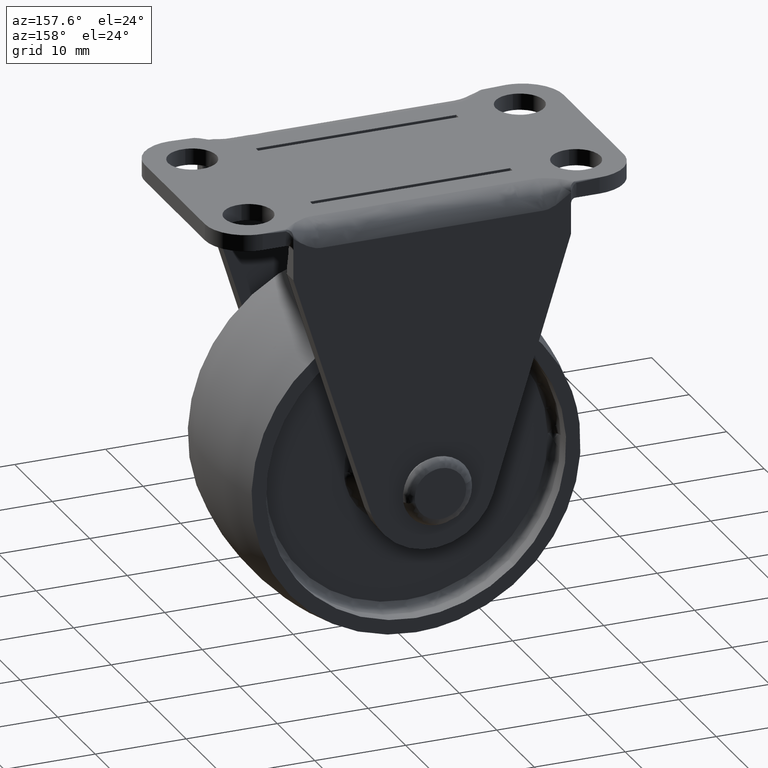
[diagram: clean part render]
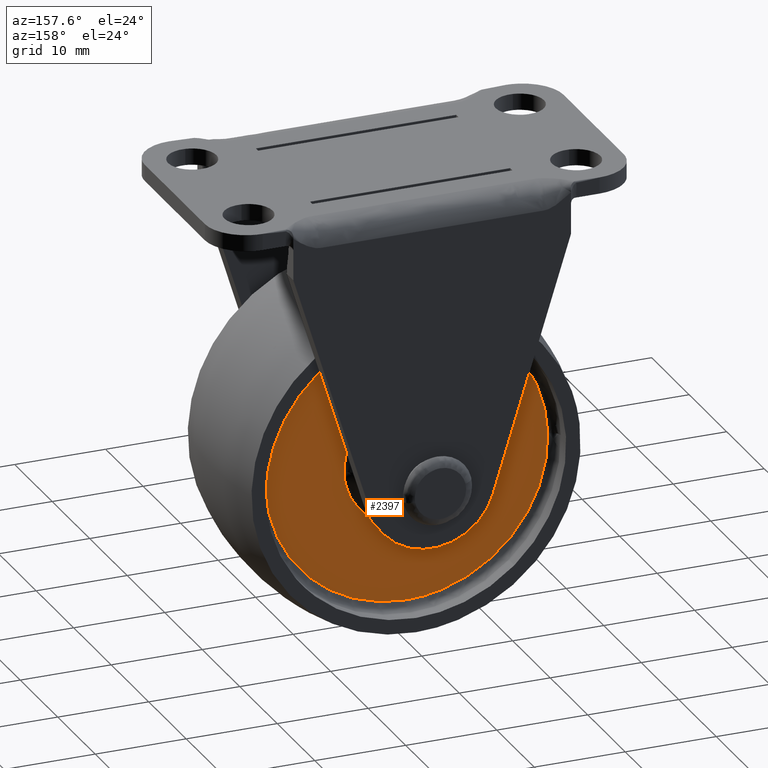
[diagram: same view with one face highlighted and labeled with its STEP entity id]
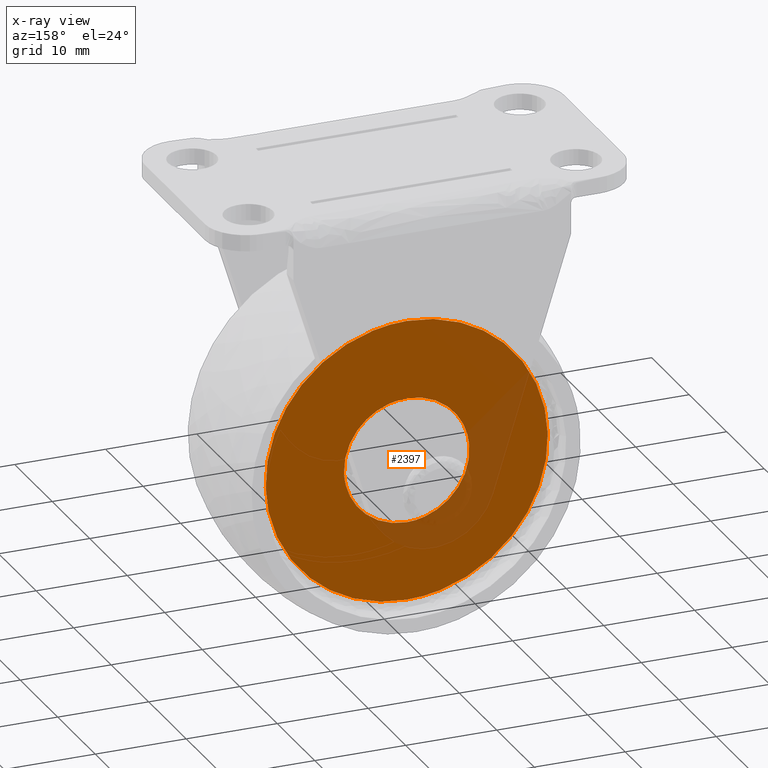
[diagram: x-ray of the same camera — body ghosted, the highlighted face saturated]
A machine part, auxiliary view. The second image highlights one B-rep face of the part: STEP entity #2397.
The next image is the same camera in x-ray: the body ghosted, the highlighted face saturated — about 14% of this face is hidden behind the body in this view.
In plain terms, the highlighted face is a freeform B-spline surface patch.
Its self-contained STEP definition (entity closure, byte-faithful):
#1788=CARTESIAN_POINT('',(-15.495104939038329,6.0,0.389516479677547));
#1789=VERTEX_POINT('',#1788);
#1803=CARTESIAN_POINT('',(0.0,6.0,-15.500000000000000));
#1804=VERTEX_POINT('',#1803);
#1805=CARTESIAN_POINT('',(-15.495104939038333,6.000000000000001,0.389516479677548));
#1806=CARTESIAN_POINT('',(-15.499999999999995,6.0,0.194788998088781));
#1807=CARTESIAN_POINT('',(-15.500000000000000,6.0,9.884614E-016));
#1808=CARTESIAN_POINT('',(-15.500000000000004,6.0,-15.500000000000004));
#1809=CARTESIAN_POINT('',(0.0,6.0,-15.500000000000000));
#1817=(BOUNDED_CURVE()B_SPLINE_CURVE(2,(#1805,#1806,#1807,#1808,#1809),.UNSPECIFIED.,.F.,.U.)B_SPLINE_CURVE_WITH_KNOTS((3,2,3),(0.745579891765826,0.750000000000000,1.0),.UNSPECIFIED.)CURVE()GEOMETRIC_REPRESENTATION_ITEM()RATIONAL_B_SPLINE_CURVE((0.989826157672576,0.994821521087155,1.0,0.707106781186548,1.0))REPRESENTATION_ITEM(''));
#1818=EDGE_CURVE('',#1789,#1804,#1817,.T.);
#1820=CARTESIAN_POINT('',(15.495104939038329,6.0,-0.389516479677539));
#1821=VERTEX_POINT('',#1820);
#1822=CARTESIAN_POINT('',(0.0,6.0,-15.500000000000000));
#1823=CARTESIAN_POINT('',(15.115257080455985,6.000000000000001,-15.500000000000002));
#1824=CARTESIAN_POINT('',(15.495104939038335,5.999999999999999,-0.389516479677540));
#1832=(BOUNDED_CURVE()B_SPLINE_CURVE(2,(#1822,#1823,#1824),.UNSPECIFIED.,.F.,.U.)B_SPLINE_CURVE_WITH_KNOTS((3,3),(0.0,0.245579891765826),.UNSPECIFIED.)CURVE()GEOMETRIC_REPRESENTATION_ITEM()RATIONAL_B_SPLINE_CURVE((1.0,0.712285260099392,0.989826157672576))REPRESENTATION_ITEM(''));
#1833=EDGE_CURVE('',#1804,#1821,#1832,.T.);
#1879=CARTESIAN_POINT('',(0.0,6.0,15.500000000000000));
#1880=VERTEX_POINT('',#1879);
#1881=CARTESIAN_POINT('',(15.495104939038329,6.000000000000001,-0.389516479677539));
#1882=CARTESIAN_POINT('',(15.500000000000002,5.999999999999999,-0.194788998088776));
#1883=CARTESIAN_POINT('',(15.500000000000000,6.0,9.884614E-016));
#1884=CARTESIAN_POINT('',(15.500000000000004,6.0,15.500000000000004));
#1885=CARTESIAN_POINT('',(0.0,6.0,15.500000000000000));
#1893=(BOUNDED_CURVE()B_SPLINE_CURVE(2,(#1881,#1882,#1883,#1884,#1885),.UNSPECIFIED.,.F.,.U.)B_SPLINE_CURVE_WITH_KNOTS((3,2,3),(0.245579891765826,0.250000000000000,0.500000000000000),.UNSPECIFIED.)CURVE()GEOMETRIC_REPRESENTATION_ITEM()RATIONAL_B_SPLINE_CURVE((0.989826157672576,0.994821521087155,1.0,0.707106781186548,1.0))REPRESENTATION_ITEM(''));
#1894=EDGE_CURVE('',#1821,#1880,#1893,.T.);
#1896=CARTESIAN_POINT('',(0.0,6.0,15.500000000000000));
#1897=CARTESIAN_POINT('',(-15.115257080455999,5.999999999999999,15.500000000000005));
#1898=CARTESIAN_POINT('',(-15.495104939038329,6.0,0.389516479677547));
#1906=(BOUNDED_CURVE()B_SPLINE_CURVE(2,(#1896,#1897,#1898),.UNSPECIFIED.,.F.,.U.)B_SPLINE_CURVE_WITH_KNOTS((3,3),(0.500000000000000,0.745579891765826),.UNSPECIFIED.)CURVE()GEOMETRIC_REPRESENTATION_ITEM()RATIONAL_B_SPLINE_CURVE((1.0,0.712285260099392,0.989826157672576))REPRESENTATION_ITEM(''));
#1907=EDGE_CURVE('',#1880,#1789,#1906,.T.);
#1939=CARTESIAN_POINT('',(-6.865535462729625,6.000000000000001,0.605486553187980));
#1940=VERTEX_POINT('',#1939);
#1954=CARTESIAN_POINT('',(0.0,6.0,6.892183337955831));
#1955=VERTEX_POINT('',#1954);
#1956=CARTESIAN_POINT('',(0.0,6.0,6.892183337955831));
#1957=CARTESIAN_POINT('',(-6.311097956023862,6.0,6.892183337955830));
#1958=CARTESIAN_POINT('',(-6.865535462729625,6.000000000000002,0.605486553187980));
#1966=(BOUNDED_CURVE()B_SPLINE_CURVE(2,(#1956,#1957,#1958),.UNSPECIFIED.,.F.,.U.)B_SPLINE_CURVE_WITH_KNOTS((3,3),(0.500000000000000,0.734718454848486),.UNSPECIFIED.)CURVE()GEOMETRIC_REPRESENTATION_ITEM()RATIONAL_B_SPLINE_CURVE((1.0,0.725010224978028,0.966381850694376))REPRESENTATION_ITEM(''));
#1967=EDGE_CURVE('',#1955,#1940,#1966,.T.);
#1969=CARTESIAN_POINT('',(6.888926990620615,6.0,-0.211839746944537));
#1970=VERTEX_POINT('',#1969);
#1971=CARTESIAN_POINT('',(6.888926990620615,5.999999999999999,-0.211839746944537));
#1972=CARTESIAN_POINT('',(6.892183337955831,5.999999999999999,-0.105944901342569));
#1973=CARTESIAN_POINT('',(6.892183337955830,6.0,9.884614E-016));
#1974=CARTESIAN_POINT('',(6.892183337955830,6.0,6.892183337955830));
#1975=CARTESIAN_POINT('',(0.0,6.0,6.892183337955831));
#1983=(BOUNDED_CURVE()B_SPLINE_CURVE(2,(#1971,#1972,#1973,#1974,#1975),.UNSPECIFIED.,.F.,.U.)B_SPLINE_CURVE_WITH_KNOTS((3,2,3),(0.244599651609519,0.250000000000000,0.500000000000000),.UNSPECIFIED.)CURVE()GEOMETRIC_REPRESENTATION_ITEM()RATIONAL_B_SPLINE_CURVE((0.987619536404502,0.993673098308792,1.0,0.707106781186548,1.0))REPRESENTATION_ITEM(''));
#1984=EDGE_CURVE('',#1970,#1955,#1983,.T.);
#2034=CARTESIAN_POINT('',(0.0,6.0,-6.892183337955829));
#2035=VERTEX_POINT('',#2034);
#2036=CARTESIAN_POINT('',(0.0,6.0,-6.892183337955829));
#2037=CARTESIAN_POINT('',(6.683501342197535,6.0,-6.892183337955830));
#2038=CARTESIAN_POINT('',(6.888926990620615,5.999999999999999,-0.211839746944537));
#2046=(BOUNDED_CURVE()B_SPLINE_CURVE(2,(#2036,#2037,#2038),.UNSPECIFIED.,.F.,.U.)B_SPLINE_CURVE_WITH_KNOTS((3,3),(0.0,0.244599651609519),.UNSPECIFIED.)CURVE()GEOMETRIC_REPRESENTATION_ITEM()RATIONAL_B_SPLINE_CURVE((1.0,0.713433682877756,0.987619536404502))REPRESENTATION_ITEM(''));
#2047=EDGE_CURVE('',#2035,#1970,#2046,.T.);
#2049=CARTESIAN_POINT('',(-6.865535462729625,6.000000000000001,0.605486553187980));
#2050=CARTESIAN_POINT('',(-6.892183337955830,6.000000000000001,0.303329672231362));
#2051=CARTESIAN_POINT('',(-6.892183337955830,6.0,9.884614E-016));
#2052=CARTESIAN_POINT('',(-6.892183337955830,6.0,-6.892183337955830));
#2053=CARTESIAN_POINT('',(0.0,6.0,-6.892183337955829));
#2061=(BOUNDED_CURVE()B_SPLINE_CURVE(2,(#2049,#2050,#2051,#2052,#2053),.UNSPECIFIED.,.F.,.U.)B_SPLINE_CURVE_WITH_KNOTS((3,2,3),(0.734718454848486,0.750000000000000,1.0),.UNSPECIFIED.)CURVE()GEOMETRIC_REPRESENTATION_ITEM()RATIONAL_B_SPLINE_CURVE((0.966381850694376,0.982096556208519,1.0,0.707106781186548,1.0))REPRESENTATION_ITEM(''));
#2062=EDGE_CURVE('',#1940,#2035,#2061,.T.);
#2380=CARTESIAN_POINT('',(-17.043065862383219,6.0,-17.048449939915990));
#2381=CARTESIAN_POINT('',(-17.043065862383219,6.0,17.048450771400780));
#2382=CARTESIAN_POINT('',(17.043066693605422,6.0,-17.048449939915990));
#2383=CARTESIAN_POINT('',(17.043066693605422,6.0,17.048450771400780));
#2384=B_SPLINE_SURFACE_WITH_KNOTS('',1,1,((#2380,#2382),(#2381,#2383)),.UNSPECIFIED.,.F.,.F.,.U.,(2,2),(2,2),(0.0,34.096900711316763),(0.0,34.086132555988641),.UNSPECIFIED.);
#2385=ORIENTED_EDGE('',*,*,#1818,.F.);
#2386=ORIENTED_EDGE('',*,*,#1907,.F.);
#2387=ORIENTED_EDGE('',*,*,#1894,.F.);
#2388=ORIENTED_EDGE('',*,*,#1833,.F.);
#2389=EDGE_LOOP('',(#2385,#2386,#2387,#2388));
#2390=FACE_OUTER_BOUND('',#2389,.T.);
#2391=ORIENTED_EDGE('',*,*,#1967,.T.);
#2392=ORIENTED_EDGE('',*,*,#2062,.T.);
#2393=ORIENTED_EDGE('',*,*,#2047,.T.);
#2394=ORIENTED_EDGE('',*,*,#1984,.T.);
#2395=EDGE_LOOP('',(#2391,#2392,#2393,#2394));
#2396=FACE_BOUND('',#2395,.T.);
#2397=ADVANCED_FACE('',(#2390,#2396),#2384,.T.);